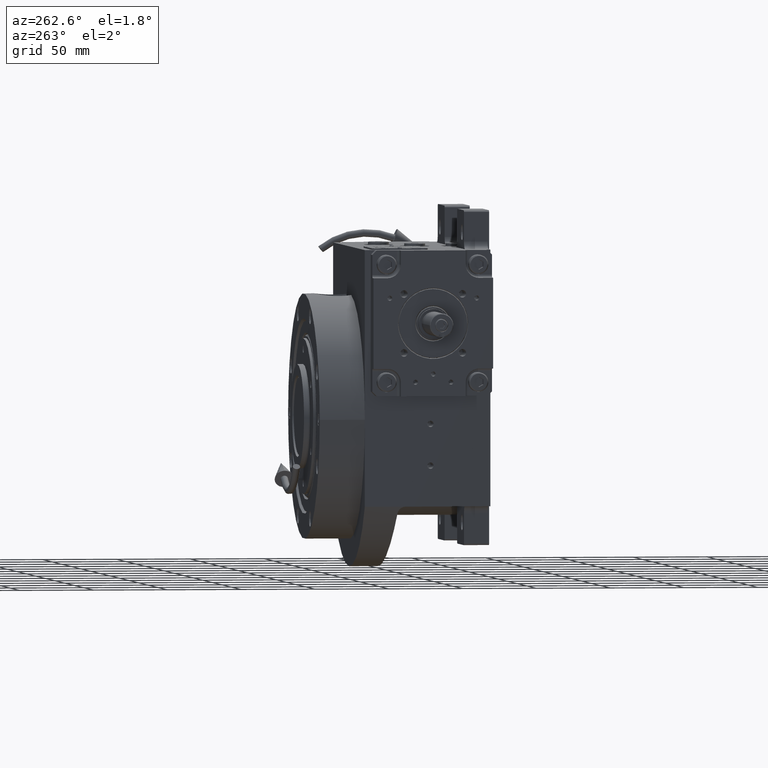
[diagram: clean part render]
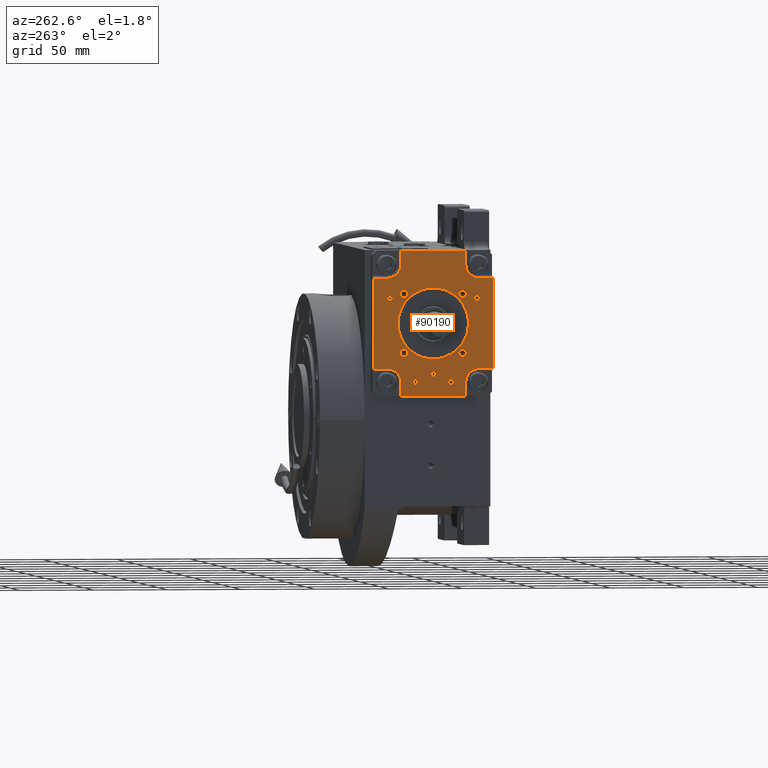
[diagram: same view with one face highlighted and labeled with its STEP entity id]
A machine part, auxiliary view. The second image highlights one B-rep face of the part: STEP entity #90190.
In plain terms, the highlighted planar face has unit normal (1, 0, -0).
Its self-contained STEP definition (entity closure, byte-faithful):
#392 = DIRECTION ( 'NONE',  ( -4.393572306434509349E-29, -1.000000000000000000, -3.774758283725543281E-15 ) ) ;
#841 = VERTEX_POINT ( 'NONE', #74594 ) ;
#988 = AXIS2_PLACEMENT_3D ( 'NONE', #53307, #392, #66175 ) ;
#1859 = FACE_BOUND ( 'NONE', #57009, .T. ) ;
#1907 = CARTESIAN_POINT ( 'NONE',  ( 20.71231213005230032, -13.99999999999995559, -11.95552765314615229 ) ) ;
#2249 = VERTEX_POINT ( 'NONE', #4853 ) ;
#2465 = AXIS2_PLACEMENT_3D ( 'NONE', #4026, #63840, #94487 ) ;
#2826 = FACE_BOUND ( 'NONE', #91025, .T. ) ;
#2887 = EDGE_CURVE ( 'NONE', #79216, #70239, #89457, .T. ) ;
#3241 = CIRCLE ( 'NONE', #53792, 2.499999999999998668 ) ;
#3307 = FACE_BOUND ( 'NONE', #9113, .T. ) ;
#3962 = VERTEX_POINT ( 'NONE', #24823 ) ;
#3983 = CARTESIAN_POINT ( 'NONE',  ( -31.09486372867137050, -13.99999999999999822, -17.00000000000094502 ) ) ;
#4026 = CARTESIAN_POINT ( 'NONE',  ( -29.44486372867137192, -13.99999999999999822, -17.00000000000093081 ) ) ;
#4078 = ORIENTED_EDGE ( 'NONE', *, *, #96115, .T. ) ;
#4853 = CARTESIAN_POINT ( 'NONE',  ( -17.29898987322287596, -13.99999999999999822, 19.79898987322282267 ) ) ;
#5047 = DIRECTION ( 'NONE',  ( 1.000000000000000000, 0.000000000000000000, 2.775557561562892929E-14 ) ) ;
#5303 = VERTEX_POINT ( 'NONE', #77811 ) ;
#5332 = VERTEX_POINT ( 'NONE', #78790 ) ;
#5456 = CARTESIAN_POINT ( 'NONE',  ( -23.54577778822957157, -14.00000000000002132, 3.887974903385350345 ) ) ;
#5496 = EDGE_CURVE ( 'NONE', #63265, #22929, #78075, .T. ) ;
#5520 = EDGE_CURVE ( 'NONE', #39835, #41111, #95065, .T. ) ;
#5942 = CARTESIAN_POINT ( 'NONE',  ( -30.99999999999905498, -13.99999999999999822, 30.49999999999906208 ) ) ;
#5947 = CARTESIAN_POINT ( 'NONE',  ( 11.95575968379388243, -14.00000000000007994, 20.71225054030661639 ) ) ;
#6144 = DIRECTION ( 'NONE',  ( -1.000000000000000000, -4.393228358949262067E-29, -2.831068712794148863E-14 ) ) ;
#6911 = CARTESIAN_POINT ( 'NONE',  ( -11.95544121681367677, -14.00000000000007994, 20.71254616477397903 ) ) ;
#7105 = VERTEX_POINT ( 'NONE', #28726 ) ;
#7666 = CIRCLE ( 'NONE', #43967, 9.000000000000001776 ) ;
#7835 = CARTESIAN_POINT ( 'NONE',  ( -2.721109384656056105E-10, -13.99999927803739830, -23.86397666347577484 ) ) ;
#8626 = DIRECTION ( 'NONE',  ( -4.393572306434509349E-29, -1.000000000000000000, -3.774758283725543281E-15 ) ) ;
#8737 = ORIENTED_EDGE ( 'NONE', *, *, #34804, .T. ) ;
#9113 = EDGE_LOOP ( 'NONE', ( #48906, #48608 ) ) ;
#9171 = EDGE_CURVE ( 'NONE', #41098, #3962, #65556, .T. ) ;
#9319 = EDGE_LOOP ( 'NONE', ( #69355, #84510 ) ) ;
#9672 = CARTESIAN_POINT ( 'NONE',  ( 9.625633623500103167E-13, -13.99999999999999822, 34.00000000000000000 ) ) ;
#9746 = FACE_OUTER_BOUND ( 'NONE', #22425, .T. ) ;
#9796 = CARTESIAN_POINT ( 'NONE',  ( 23.09942915084176818, -13.99999999999997868, -6.192947907790525619 ) ) ;
#10300 = VECTOR ( 'NONE', #56283, 1000.000000000000000 ) ;
#10357 = CIRCLE ( 'NONE', #2465, 1.649999999999998579 ) ;
#10360 = CARTESIAN_POINT ( 'NONE',  ( -40.50000000000071054, -14.00000000000001243, -30.50000000000094147 ) ) ;
#11543 = CARTESIAN_POINT ( 'NONE',  ( -27.79486372867136978, -13.99999999999999822, -17.00000000000093081 ) ) ;
#12355 = CARTESIAN_POINT ( 'NONE',  ( -31.00000000000106226, -14.00000000000001243, -39.50000000000096634 ) ) ;
#12407 = CARTESIAN_POINT ( 'NONE',  ( 40.49999999999929656, -14.00000000000001243, -30.49999999999905498 ) ) ;
#12429 = CARTESIAN_POINT ( 'NONE',  ( 21.99999999999869971, -14.00000000000047073, -48.99999999999906919 ) ) ;
#12530 = EDGE_LOOP ( 'NONE', ( #52264, #80945 ) ) ;
#12584 = CARTESIAN_POINT ( 'NONE',  ( 40.49999999999929656, -14.00000000000001243, -30.49999999999905498 ) ) ;
#12871 = CARTESIAN_POINT ( 'NONE',  ( -1.566779169208735389, -14.00000000000008882, 23.86393717191058528 ) ) ;
#13258 = EDGE_CURVE ( 'NONE', #2249, #38309, #92267, .T. ) ;
#13280 = VERTEX_POINT ( 'NONE', #93159 ) ;
#13475 = CARTESIAN_POINT ( 'NONE',  ( 22.29898987322382098, -13.99999999999999822, 19.79898987322382098 ) ) ;
#13842 = CARTESIAN_POINT ( 'NONE',  ( -10.57953588485652929, -14.00000000000007816, 21.44790465845246885 ) ) ;
#14327 = CARTESIAN_POINT ( 'NONE',  ( 1.566768470596048068, -14.00000000000009237, 23.86400311483101788 ) ) ;
#14585 = DIRECTION ( 'NONE',  ( -1.000000000000000000, 0.000000000000000000, -2.852656382717415620E-14 ) ) ;
#14805 = CARTESIAN_POINT ( 'NONE',  ( 22.34697646102477364, -14.00000000000003197, 8.409467918700963551 ) ) ;
#15411 = EDGE_CURVE ( 'NONE', #37375, #82073, #21308, .T. ) ;
#15464 = DIRECTION ( 'NONE',  ( -4.393572306434509349E-29, -1.000000000000000000, -3.774758283725543281E-15 ) ) ;
#15556 = EDGE_CURVE ( 'NONE', #87491, #5332, #31171, .T. ) ;
#15583 = DIRECTION ( 'NONE',  ( 1.000000000000000000, 0.000000000000000000, 2.852656382717415620E-14 ) ) ;
#15602 = VECTOR ( 'NONE', #58819, 1000.000000000000000 ) ;
#15750 = CARTESIAN_POINT ( 'NONE',  ( 1.566774008614369773, -13.99999999999990763, -23.86393752002926050 ) ) ;
#16372 = VECTOR ( 'NONE', #70120, 1000.000000000000000 ) ;
#16381 = CARTESIAN_POINT ( 'NONE',  ( -21.44833860699378647, -13.99999999999996092, -10.57860939760698749 ) ) ;
#16537 = VECTOR ( 'NONE', #41140, 1000.000000000000000 ) ;
#16566 = DIRECTION ( 'NONE',  ( 4.393572306434509349E-29, 1.000000000000000000, 3.774758283725543281E-15 ) ) ;
#16857 = EDGE_CURVE ( 'NONE', #74498, #78843, #25712, .T. ) ;
#17137 = VERTEX_POINT ( 'NONE', #78955 ) ;
#17840 = EDGE_CURVE ( 'NONE', #70239, #79216, #60332, .T. ) ;
#18201 = AXIS2_PLACEMENT_3D ( 'NONE', #80084, #19793, #48512 ) ;
#18789 = ORIENTED_EDGE ( 'NONE', *, *, #59069, .F. ) ;
#19714 = DIRECTION ( 'NONE',  ( -2.775557561562890720E-14, -3.854941057726237111E-15, -1.000000000000000000 ) ) ;
#19793 = DIRECTION ( 'NONE',  ( -4.393572306434509349E-29, -1.000000000000000000, -3.774758283725543281E-15 ) ) ;
#20300 = CARTESIAN_POINT ( 'NONE',  ( 23.24092213513678118, -14.00000000000002132, 5.420264589931520050 ) ) ;
#20778 = CARTESIAN_POINT ( 'NONE',  ( 23.70962956883355588, -14.00000000000001243, 3.125609056103567429 ) ) ;
#20835 = ORIENTED_EDGE ( 'NONE', *, *, #5496, .T. ) ;
#20868 = CARTESIAN_POINT ( 'NONE',  ( -15.76640134121093695, -13.99999999999992895, -17.98226844684482728 ) ) ;
#20873 = CARTESIAN_POINT ( 'NONE',  ( -22.00000000000105871, -14.00000000000001243, -39.50000000000092371 ) ) ;
#21308 = LINE ( 'NONE', #12429, #88677 ) ;
#21508 = VERTEX_POINT ( 'NONE', #11543 ) ;
#21552 = DIRECTION ( 'NONE',  ( -4.393572306434509349E-29, -1.000000000000000000, -3.774758283725543281E-15 ) ) ;
#21794 = DIRECTION ( 'NONE',  ( -1.000000000000000000, 0.000000000000000000, -2.636779683484748046E-14 ) ) ;
#21809 = LINE ( 'NONE', #56247, #48507 ) ;
#21884 = EDGE_CURVE ( 'NONE', #44111, #82699, #26288, .T. ) ;
#22024 = ORIENTED_EDGE ( 'NONE', *, *, #77211, .F. ) ;
#22240 = CARTESIAN_POINT ( 'NONE',  ( -21.44818571229936666, -14.00000000000004086, 10.57917287093051684 ) ) ;
#22425 = EDGE_LOOP ( 'NONE', ( #87661, #22486, #38173, #70606, #45338, #20835, #45787, #80588, #22024, #86671, #86433, #70315, #93664, #44987, #4078, #41408 ) ) ;
#22486 = ORIENTED_EDGE ( 'NONE', *, *, #44044, .T. ) ;
#22534 = DIRECTION ( 'NONE',  ( -4.393572306434509349E-29, -1.000000000000000000, -3.774758283725543281E-15 ) ) ;
#22929 = VERTEX_POINT ( 'NONE', #66795 ) ;
#23171 = CARTESIAN_POINT ( 'NONE',  ( 12.00000000000112088, -13.99999999999998401, 39.50000000000046185 ) ) ;
#23507 = CARTESIAN_POINT ( 'NONE',  ( -30.99999999999893774, -13.99999999999998401, 39.49999999999905498 ) ) ;
#23638 = DIRECTION ( 'NONE',  ( -4.393572306434509349E-29, -1.000000000000000000, -3.774758283725543281E-15 ) ) ;
#23804 = CARTESIAN_POINT ( 'NONE',  ( -23.86397420030304772, -13.99999855607482502, -1.113405617703122630E-07 ) ) ;
#23940 = AXIS2_PLACEMENT_3D ( 'NONE', #59718, #68098, #66156 ) ;
#24154 = CARTESIAN_POINT ( 'NONE',  ( 23.54577769822290634, -13.99999999999998046, -3.887975449872154599 ) ) ;
#24266 = CARTESIAN_POINT ( 'NONE',  ( 10.35000000000112053, -13.99999999999998401, 39.50000000000046185 ) ) ;
#24614 = CARTESIAN_POINT ( 'NONE',  ( -29.44486372867137192, -13.99999999999999822, -17.00000000000093081 ) ) ;
#24642 = CARTESIAN_POINT ( 'NONE',  ( 14.56088552662168389, -13.99999999999992895, -18.97166031808825792 ) ) ;
#24823 = CARTESIAN_POINT ( 'NONE',  ( 17.29898987322382098, -13.99999999999999822, 19.79898987322381743 ) ) ;
#25075 = FACE_BOUND ( 'NONE', #9319, .T. ) ;
#25640 = AXIS2_PLACEMENT_3D ( 'NONE', #9672, #45821, #37921 ) ;
#25712 = LINE ( 'NONE', #63773, #77868 ) ;
#26074 = DIRECTION ( 'NONE',  ( -2.831068712794148547E-14, -3.774758283725543281E-15, -1.000000000000000000 ) ) ;
#26288 = LINE ( 'NONE', #12407, #16537 ) ;
#26385 = EDGE_CURVE ( 'NONE', #63265, #45470, #59795, .T. ) ;
#26950 = LINE ( 'NONE', #71453, #77760 ) ;
#27219 = EDGE_CURVE ( 'NONE', #44825, #70663, #83015, .T. ) ;
#27320 = CARTESIAN_POINT ( 'NONE',  ( -2.721109384656056105E-10, -13.99999927803739830, -23.86397666347577484 ) ) ;
#27591 = AXIS2_PLACEMENT_3D ( 'NONE', #46854, #32006, #62159 ) ;
#27707 = CARTESIAN_POINT ( 'NONE',  ( 6.192328095637854801, -14.00000000000008349, 23.09972492920076093 ) ) ;
#27857 = AXIS2_PLACEMENT_3D ( 'NONE', #84741, #8626, #69441 ) ;
#28186 = CARTESIAN_POINT ( 'NONE',  ( 21.44833792708046616, -14.00000000000004086, 10.57861081113255253 ) ) ;
#28726 = CARTESIAN_POINT ( 'NONE',  ( -21.99999999999893774, -13.99999999999998401, 39.49999999999952394 ) ) ;
#28802 = CIRCLE ( 'NONE', #25640, 1.649999999999999911 ) ;
#29664 = CARTESIAN_POINT ( 'NONE',  ( 14.56054772235363082, -14.00000000000006928, 18.97195909268343073 ) ) ;
#29813 = CARTESIAN_POINT ( 'NONE',  ( 31.00000000000106226, -13.99999999999998401, 39.50000000000093792 ) ) ;
#29819 = ORIENTED_EDGE ( 'NONE', *, *, #90330, .F. ) ;
#29918 = CARTESIAN_POINT ( 'NONE',  ( 30.99999999999893774, -14.00000000000001243, -39.49999999999906208 ) ) ;
#30218 = DIRECTION ( 'NONE',  ( -1.000000000000000000, 0.000000000000000000, -2.943773171354580837E-14 ) ) ;
#30542 = AXIS2_PLACEMENT_3D ( 'NONE', #23171, #37521, #91380 ) ;
#31171 = LINE ( 'NONE', #82571, #58715 ) ;
#32006 = DIRECTION ( 'NONE',  ( -1.507982843436518664E-28, 1.000000000000000000, 3.774758283725543281E-15 ) ) ;
#32076 = CARTESIAN_POINT ( 'NONE',  ( -21.99999999999869971, -13.99999999999952749, 48.99999999999953104 ) ) ;
#32296 = CIRCLE ( 'NONE', #81246, 1.649999999999998579 ) ;
#32496 = PLANE ( 'NONE',  #27591 ) ;
#33115 = DIRECTION ( 'NONE',  ( 1.000000000000000000, 4.393228358949262067E-29, 2.831068712794148863E-14 ) ) ;
#33543 = AXIS2_PLACEMENT_3D ( 'NONE', #63242, #15464, #93388 ) ;
#33722 = VECTOR ( 'NONE', #68608, 1000.000000000000000 ) ;
#34145 = AXIS2_PLACEMENT_3D ( 'NONE', #59334, #72210, #96391 ) ;
#34419 = EDGE_LOOP ( 'NONE', ( #95438, #42297 ) ) ;
#34576 = VERTEX_POINT ( 'NONE', #73106 ) ;
#34647 = EDGE_CURVE ( 'NONE', #70663, #44825, #49540, .T. ) ;
#34666 = VERTEX_POINT ( 'NONE', #83444 ) ;
#34760 = CARTESIAN_POINT ( 'NONE',  ( -1.566773563360392973, -13.99999999999990763, -23.86400276692703670 ) ) ;
#34804 = EDGE_CURVE ( 'NONE', #34666, #17137, #38620, .T. ) ;
#35149 = CARTESIAN_POINT ( 'NONE',  ( 17.98245215247009199, -14.00000000000005329, 15.76637152696359578 ) ) ;
#35197 = DIRECTION ( 'NONE',  ( 2.831068712794148547E-14, 3.774758283725543281E-15, 1.000000000000000000 ) ) ;
#35349 = CARTESIAN_POINT ( 'NONE',  ( 21.99999999999869971, -14.00000000000047073, -48.99999999999906919 ) ) ;
#35634 = CARTESIAN_POINT ( 'NONE',  ( -23.47920126455800371, -14.00000000000001421, 4.271604035881808592 ) ) ;
#36124 = CARTESIAN_POINT ( 'NONE',  ( 23.32664490037724292, -14.00000000000002132, 5.038317025994189180 ) ) ;
#36145 = VERTEX_POINT ( 'NONE', #51806 ) ;
#36231 = EDGE_CURVE ( 'NONE', #45470, #80367, #60206, .T. ) ;
#36401 = DIRECTION ( 'NONE',  ( -4.393572306434509349E-29, -1.000000000000000000, -3.774758283725543281E-15 ) ) ;
#36598 = CARTESIAN_POINT ( 'NONE',  ( -23.86322586908651289, -14.00000000000000355, 0.7869472472480262271 ) ) ;
#36899 = DIRECTION ( 'NONE',  ( 1.000000000000000000, 0.000000000000000000, 2.775557561562892929E-14 ) ) ;
#37020 = AXIS2_PLACEMENT_3D ( 'NONE', #58448, #50537, #5047 ) ;
#37099 = CARTESIAN_POINT ( 'NONE',  ( 10.57957080955147511, -14.00000000000007994, 21.44796303468496035 ) ) ;
#37195 = CARTESIAN_POINT ( 'NONE',  ( -23.32664505306335201, -13.99999999999997691, -5.038316317723427140 ) ) ;
#37375 = VERTEX_POINT ( 'NONE', #66180 ) ;
#37521 = DIRECTION ( 'NONE',  ( -4.393572306434509349E-29, -1.000000000000000000, -3.774758283725543281E-15 ) ) ;
#37726 = EDGE_CURVE ( 'NONE', #5303, #841, #32296, .T. ) ;
#37783 = CARTESIAN_POINT ( 'NONE',  ( 21.99999999999893774, -14.00000000000001243, -39.49999999999906208 ) ) ;
#37921 = DIRECTION ( 'NONE',  ( 1.000000000000000000, 0.000000000000000000, 2.943773171354582099E-14 ) ) ;
#38034 = CARTESIAN_POINT ( 'NONE',  ( 3.119326620315172605, -13.99999999999990941, -23.71108290340073665 ) ) ;
#38147 = DIRECTION ( 'NONE',  ( -1.000000000000000000, 0.000000000000000000, -2.775557561562892929E-14 ) ) ;
#38159 = DIRECTION ( 'NONE',  ( -4.393572306434509349E-29, -1.000000000000000000, -3.774758283725543281E-15 ) ) ;
#38173 = ORIENTED_EDGE ( 'NONE', *, *, #68914, .T. ) ;
#38309 = VERTEX_POINT ( 'NONE', #94474 ) ;
#38336 = DIRECTION ( 'NONE',  ( 4.393572306434509349E-29, 1.000000000000000000, 3.774758283725543281E-15 ) ) ;
#38589 = VERTEX_POINT ( 'NONE', #3983 ) ;
#38620 = B_SPLINE_CURVE_WITH_KNOTS ( 'NONE', 3,
 ( #65294, #36598, #88015, #50950, #5456, #35634, #58372, #97395, #81073, #22240, #95924, #95430, #51905, #43535, #59348, #6911, #13842, #65783, #82042, #74617, #12871, #14327, #59828, #27707, #43053, #37099, #5947, #29664, #52398, #35149, #89472, #96900, #28186, #14805, #75118, #88496, #20300, #36124, #50468, #20778, #66266, #96407 ),
 .UNSPECIFIED., .F., .F.,
 ( 4, 1, 1, 2, 2, 2, 2, 2, 2, 2, 2, 2, 2, 2, 2, 2, 2, 2, 1, 1, 2, 2, 4 ),
 ( 0.000000000000000000, 0.03125000000000020123, 0.04687500000000029143, 0.05468750000000034694, 0.06250000000000038858, 0.1250000000000004718, 0.1875000000000005551, 0.2500000000000006661, 0.3125000000000006661, 0.3750000000000006661, 0.4375000000000007216, 0.5000000000000006661, 0.5625000000000007772, 0.6250000000000007772, 0.6875000000000007772, 0.7500000000000006661, 0.8125000000000005551, 0.8750000000000004441, 0.9062500000000004441, 0.9218750000000003331, 0.9296875000000003331, 0.9375000000000002220, 1.000000000000000000 ),
 .UNSPECIFIED. ) ;
#38705 = VERTEX_POINT ( 'NONE', #87502 ) ;
#38995 = ORIENTED_EDGE ( 'NONE', *, *, #86679, .F. ) ;
#39032 = CARTESIAN_POINT ( 'NONE',  ( 18.97211941539627844, -13.99999999999994138, -14.56041862828626066 ) ) ;
#39835 = VERTEX_POINT ( 'NONE', #95055 ) ;
#41098 = VERTEX_POINT ( 'NONE', #13475 ) ;
#41111 = VERTEX_POINT ( 'NONE', #54962 ) ;
#41140 = DIRECTION ( 'NONE',  ( -1.000000000000000000, -4.393228358949262067E-29, -2.831068712794148863E-14 ) ) ;
#41408 = ORIENTED_EDGE ( 'NONE', *, *, #15556, .F. ) ;
#41795 = EDGE_CURVE ( 'NONE', #82073, #82699, #66653, .T. ) ;
#42237 = CARTESIAN_POINT ( 'NONE',  ( 22.00000000000129674, -13.99999999999952749, 49.00000000000047606 ) ) ;
#42297 = ORIENTED_EDGE ( 'NONE', *, *, #34647, .F. ) ;
#42366 = CARTESIAN_POINT ( 'NONE',  ( -19.79898987322287596, -13.99999999999999822, 19.79898987322282267 ) ) ;
#42657 = CARTESIAN_POINT ( 'NONE',  ( -14.56055017842635557, -13.99999999999993072, -18.97195719011450876 ) ) ;
#42895 = ORIENTED_EDGE ( 'NONE', *, *, #9171, .F. ) ;
#43024 = AXIS2_PLACEMENT_3D ( 'NONE', #29918, #38336, #14585 ) ;
#43031 = CARTESIAN_POINT ( 'NONE',  ( -10.34999999999887876, -13.99999999999998401, 39.49999999999953104 ) ) ;
#43053 = CARTESIAN_POINT ( 'NONE',  ( 7.685169508964895257, -14.00000000000008527, 22.64680274495815482 ) ) ;
#43315 = DIRECTION ( 'NONE',  ( -1.000000000000000000, 0.000000000000000000, -2.636779683484748046E-14 ) ) ;
#43535 = CARTESIAN_POINT ( 'NONE',  ( -15.76650740898569225, -14.00000000000006750, 17.98226460072634225 ) ) ;
#43883 = EDGE_CURVE ( 'NONE', #41111, #39835, #28802, .T. ) ;
#43967 = AXIS2_PLACEMENT_3D ( 'NONE', #29813, #90112, #19714 ) ;
#44044 = EDGE_CURVE ( 'NONE', #36145, #7105, #26950, .T. ) ;
#44111 = VERTEX_POINT ( 'NONE', #12584 ) ;
#44608 = CARTESIAN_POINT ( 'NONE',  ( -22.74139576683487007, -13.99999999999997158, -7.307389396848209984 ) ) ;
#44665 = EDGE_CURVE ( 'NONE', #13280, #34666, #76834, .T. ) ;
#44825 = VERTEX_POINT ( 'NONE', #86548 ) ;
#44987 = ORIENTED_EDGE ( 'NONE', *, *, #71012, .T. ) ;
#45338 = ORIENTED_EDGE ( 'NONE', *, *, #26385, .F. ) ;
#45450 = CARTESIAN_POINT ( 'NONE',  ( 23.44379405512639991, -13.99999999999998224, -4.461832952019680221 ) ) ;
#45470 = VERTEX_POINT ( 'NONE', #79236 ) ;
#45787 = ORIENTED_EDGE ( 'NONE', *, *, #83930, .T. ) ;
#45821 = DIRECTION ( 'NONE',  ( -4.393572306434509349E-29, -1.000000000000000000, -3.774758283725543281E-15 ) ) ;
#46078 = CARTESIAN_POINT ( 'NONE',  ( -23.70962961231633770, -13.99999999999998401, -3.125608614640585259 ) ) ;
#46854 = CARTESIAN_POINT ( 'NONE',  ( 1.047705889746656304E-28, -13.99999999999999822, 0.000000000000000000 ) ) ;
#47246 = ORIENTED_EDGE ( 'NONE', *, *, #76833, .T. ) ;
#47387 = CARTESIAN_POINT ( 'NONE',  ( 40.50000000000094502, -13.99999999999999822, 30.50000000000094147 ) ) ;
#47723 = VECTOR ( 'NONE', #33115, 1000.000000000000000 ) ;
#47913 = CARTESIAN_POINT ( 'NONE',  ( 40.50000000000094502, -13.99999999999999822, 30.50000000000094147 ) ) ;
#48507 = VECTOR ( 'NONE', #26074, 1000.000000000000000 ) ;
#48512 = DIRECTION ( 'NONE',  ( 1.000000000000000000, 0.000000000000000000, 2.636779683484748046E-14 ) ) ;
#48608 = ORIENTED_EDGE ( 'NONE', *, *, #90429, .F. ) ;
#48889 = ORIENTED_EDGE ( 'NONE', *, *, #88592, .F. ) ;
#48906 = ORIENTED_EDGE ( 'NONE', *, *, #13258, .F. ) ;
#48960 = CARTESIAN_POINT ( 'NONE',  ( 30.99999999999905498, -14.00000000000001243, -30.49999999999905498 ) ) ;
#49466 = DIRECTION ( 'NONE',  ( 4.393572306434509349E-29, 1.000000000000000000, 3.774758283725543281E-15 ) ) ;
#49540 = CIRCLE ( 'NONE', #30542, 1.650000000000000355 ) ;
#50174 = VECTOR ( 'NONE', #6144, 1000.000000000000000 ) ;
#50468 = CARTESIAN_POINT ( 'NONE',  ( 23.36748957619225564, -14.00000000000001954, 4.845252721683312558 ) ) ;
#50537 = DIRECTION ( 'NONE',  ( -4.393572306434509349E-29, -1.000000000000000000, -3.774758283725543281E-15 ) ) ;
#50950 = CARTESIAN_POINT ( 'NONE',  ( -23.63854925147816033, -14.00000000000000888, 3.311476437734099498 ) ) ;
#51225 = EDGE_CURVE ( 'NONE', #21508, #38589, #75432, .T. ) ;
#51806 = CARTESIAN_POINT ( 'NONE',  ( -21.99999999999869971, -13.99999999999952749, 48.99999999999953104 ) ) ;
#51905 = CARTESIAN_POINT ( 'NONE',  ( -17.98235932460677233, -14.00000000000005862, 15.76636488206861486 ) ) ;
#52264 = ORIENTED_EDGE ( 'NONE', *, *, #37726, .F. ) ;
#52398 = CARTESIAN_POINT ( 'NONE',  ( 15.76639915680304682, -14.00000000000006750, 17.98227038497826769 ) ) ;
#52768 = AXIS2_PLACEMENT_3D ( 'NONE', #83794, #22534, #36899 ) ;
#52870 = CIRCLE ( 'NONE', #93927, 2.499999999999998668 ) ;
#52980 = CARTESIAN_POINT ( 'NONE',  ( -22.34697688814391370, -13.99999999999996980, -8.409466773888212288 ) ) ;
#53243 = EDGE_CURVE ( 'NONE', #34576, #72482, #96981, .T. ) ;
#53307 = CARTESIAN_POINT ( 'NONE',  ( 19.79898987322275872, -13.99999999999999822, -19.79898987322282977 ) ) ;
#53482 = CARTESIAN_POINT ( 'NONE',  ( -23.10547566701053768, -13.99999999999997335, -5.990996842902134745 ) ) ;
#53792 = AXIS2_PLACEMENT_3D ( 'NONE', #74659, #53917, #21794 ) ;
#53803 = DIRECTION ( 'NONE',  ( 1.000000000000000000, 0.000000000000000000, 3.784851220313037103E-14 ) ) ;
#53833 = CARTESIAN_POINT ( 'NONE',  ( 6.191961161476491782, -13.99999999999991473, -23.09972976944129996 ) ) ;
#53917 = DIRECTION ( 'NONE',  ( -4.393572306434509349E-29, -1.000000000000000000, -3.774758283725543281E-15 ) ) ;
#54014 = EDGE_LOOP ( 'NONE', ( #48889, #29819 ) ) ;
#54277 = FACE_BOUND ( 'NONE', #79738, .T. ) ;
#54329 = CARTESIAN_POINT ( 'NONE',  ( 15.76650524893556238, -13.99999999999992717, -17.98226651476915805 ) ) ;
#54962 = CARTESIAN_POINT ( 'NONE',  ( 1.650000000000958478, -13.99999999999999822, 34.00000000000000000 ) ) ;
#55291 = CARTESIAN_POINT ( 'NONE',  ( 23.86322586898059939, -13.99999999999999822, -0.7869473592178296562 ) ) ;
#55618 = AXIS2_PLACEMENT_3D ( 'NONE', #23507, #16566, #15583 ) ;
#55984 = AXIS2_PLACEMENT_3D ( 'NONE', #58647, #72489, #43315 ) ;
#56247 = CARTESIAN_POINT ( 'NONE',  ( 40.50000000000094502, -13.99999999999999822, 30.50000000000094147 ) ) ;
#56283 = DIRECTION ( 'NONE',  ( 1.000000000000000000, 4.393228358949262067E-29, 2.831068712794148863E-14 ) ) ;
#57009 = EDGE_LOOP ( 'NONE', ( #88253, #18789 ) ) ;
#57117 = DIRECTION ( 'NONE',  ( -2.831068712794148547E-14, -3.774758283725543281E-15, -1.000000000000000000 ) ) ;
#57859 = DIRECTION ( 'NONE',  ( 2.775557561562890720E-14, 3.854941057726237111E-15, 1.000000000000000000 ) ) ;
#57985 = CARTESIAN_POINT ( 'NONE',  ( -18.97165082881188880, -13.99999999999994493, -14.56102186836356616 ) ) ;
#58372 = CARTESIAN_POINT ( 'NONE',  ( -23.44379417511130725, -14.00000000000001599, 4.461832321008357916 ) ) ;
#58448 = CARTESIAN_POINT ( 'NONE',  ( -19.79898987322393822, -13.99999999999999822, -19.79898987322428638 ) ) ;
#58647 = CARTESIAN_POINT ( 'NONE',  ( 19.79898987322275872, -13.99999999999999822, -19.79898987322287240 ) ) ;
#58715 = VECTOR ( 'NONE', #90497, 1000.000000000000000 ) ;
#58819 = DIRECTION ( 'NONE',  ( 2.831068712794148547E-14, 3.774758283725543281E-15, 1.000000000000000000 ) ) ;
#58929 = ORIENTED_EDGE ( 'NONE', *, *, #2887, .F. ) ;
#59069 = EDGE_CURVE ( 'NONE', #72482, #34576, #62886, .T. ) ;
#59334 = CARTESIAN_POINT ( 'NONE',  ( 12.00000000000112088, -13.99999999999998401, 39.50000000000046185 ) ) ;
#59348 = CARTESIAN_POINT ( 'NONE',  ( -14.56088801808533439, -14.00000000000007105, 18.97165839184616587 ) ) ;
#59718 = CARTESIAN_POINT ( 'NONE',  ( 29.44486372867042689, -13.99999999999999822, -16.99999999999907274 ) ) ;
#59795 = LINE ( 'NONE', #88456, #15602 ) ;
#59828 = CARTESIAN_POINT ( 'NONE',  ( 3.118947749979955830, -14.00000000000008882, 23.71108948655760784 ) ) ;
#60206 = LINE ( 'NONE', #90348, #33722 ) ;
#60332 = CIRCLE ( 'NONE', #72937, 1.650000000000000355 ) ;
#60835 = ORIENTED_EDGE ( 'NONE', *, *, #17840, .F. ) ;
#61733 = LINE ( 'NONE', #47387, #16372 ) ;
#62159 = DIRECTION ( 'NONE',  ( 1.000000000000000000, 4.393228358949262067E-29, 2.831068712794148863E-14 ) ) ;
#62211 = CARTESIAN_POINT ( 'NONE',  ( 21.44818503823665168, -13.99999999999996270, -10.57917427091263640 ) ) ;
#62649 = FACE_BOUND ( 'NONE', #12530, .T. ) ;
#62667 = EDGE_CURVE ( 'NONE', #3962, #41098, #3241, .T. ) ;
#62886 = CIRCLE ( 'NONE', #70802, 2.499999999999998668 ) ;
#63242 = CARTESIAN_POINT ( 'NONE',  ( 9.625633623500103167E-13, -13.99999999999999822, 34.00000000000000000 ) ) ;
#63265 = VERTEX_POINT ( 'NONE', #95113 ) ;
#63773 = CARTESIAN_POINT ( 'NONE',  ( -22.00000000000129674, -14.00000000000047073, -49.00000000000093081 ) ) ;
#63840 = DIRECTION ( 'NONE',  ( -4.393572306434509349E-29, -1.000000000000000000, -3.774758283725543281E-15 ) ) ;
#64108 = FACE_BOUND ( 'NONE', #68399, .T. ) ;
#65130 = ORIENTED_EDGE ( 'NONE', *, *, #62667, .F. ) ;
#65269 = CARTESIAN_POINT ( 'NONE',  ( -22.00000000000129674, -14.00000000000047073, -49.00000000000093081 ) ) ;
#65294 = CARTESIAN_POINT ( 'NONE',  ( -23.86397420030304772, -13.99999855607482502, -1.113405617703122630E-07 ) ) ;
#65556 = CIRCLE ( 'NONE', #18201, 2.499999999999998668 ) ;
#65783 = CARTESIAN_POINT ( 'NONE',  ( -7.685223904494162817, -14.00000000000008527, 22.64685083059221782 ) ) ;
#65992 = LINE ( 'NONE', #35349, #50174 ) ;
#66156 = DIRECTION ( 'NONE',  ( -1.000000000000000000, 0.000000000000000000, -2.733503659114971031E-14 ) ) ;
#66175 = DIRECTION ( 'NONE',  ( 1.000000000000000000, 0.000000000000000000, 2.636779683484748046E-14 ) ) ;
#66180 = CARTESIAN_POINT ( 'NONE',  ( 21.99999999999869971, -14.00000000000047073, -48.99999999999906919 ) ) ;
#66266 = CARTESIAN_POINT ( 'NONE',  ( 23.86245126994556287, -14.00000000000001066, 1.574215321675275447 ) ) ;
#66337 = CARTESIAN_POINT ( 'NONE',  ( -19.79898987322393822, -13.99999999999999822, -19.79898987322428638 ) ) ;
#66541 = DIRECTION ( 'NONE',  ( -1.000000000000000000, 0.000000000000000000, -2.775557561562892929E-14 ) ) ;
#66653 = CIRCLE ( 'NONE', #43024, 9.000000000000001776 ) ;
#66795 = CARTESIAN_POINT ( 'NONE',  ( -31.00000000000094502, -14.00000000000001243, -30.50000000000094147 ) ) ;
#67079 = EDGE_CURVE ( 'NONE', #841, #5303, #71362, .T. ) ;
#67113 = VERTEX_POINT ( 'NONE', #81437 ) ;
#67340 = CARTESIAN_POINT ( 'NONE',  ( -23.36748971678186138, -13.99999999999997868, -4.845252042924186320 ) ) ;
#68098 = DIRECTION ( 'NONE',  ( -4.393572306434509349E-29, -1.000000000000000000, -3.774758283725543281E-15 ) ) ;
#68161 = CARTESIAN_POINT ( 'NONE',  ( 23.80536272683590227, -13.99999999999999112, -1.958930260381883004 ) ) ;
#68399 = EDGE_LOOP ( 'NONE', ( #70240, #38995 ) ) ;
#68608 = DIRECTION ( 'NONE',  ( 1.000000000000000000, 4.393228358949262067E-29, 2.831068712794148863E-14 ) ) ;
#68809 = CARTESIAN_POINT ( 'NONE',  ( -23.24092231173644052, -13.99999999999998224, -5.420263831053940606 ) ) ;
#68914 = EDGE_CURVE ( 'NONE', #7105, #80367, #85800, .T. ) ;
#69355 = ORIENTED_EDGE ( 'NONE', *, *, #43883, .F. ) ;
#69441 = DIRECTION ( 'NONE',  ( 1.000000000000000000, 0.000000000000000000, 2.943773171354580837E-14 ) ) ;
#69640 = CARTESIAN_POINT ( 'NONE',  ( 23.47920115566111221, -13.99999999999998224, -4.271604635540419359 ) ) ;
#69858 = CARTESIAN_POINT ( 'NONE',  ( -13.64999999999887947, -13.99999999999998401, 39.49999999999953815 ) ) ;
#70120 = DIRECTION ( 'NONE',  ( -1.000000000000000000, -4.393228358949262067E-29, -2.831068712794148863E-14 ) ) ;
#70239 = VERTEX_POINT ( 'NONE', #69858 ) ;
#70240 = ORIENTED_EDGE ( 'NONE', *, *, #51225, .F. ) ;
#70315 = ORIENTED_EDGE ( 'NONE', *, *, #21884, .F. ) ;
#70606 = ORIENTED_EDGE ( 'NONE', *, *, #36231, .F. ) ;
#70663 = VERTEX_POINT ( 'NONE', #24266 ) ;
#70802 = AXIS2_PLACEMENT_3D ( 'NONE', #66337, #73733, #38147 ) ;
#71012 = EDGE_CURVE ( 'NONE', #93670, #67113, #61733, .T. ) ;
#71354 = CARTESIAN_POINT ( 'NONE',  ( 22.29898987322275872, -13.99999999999999822, -19.79898987322239989 ) ) ;
#71362 = CIRCLE ( 'NONE', #23940, 1.649999999999998579 ) ;
#71453 = CARTESIAN_POINT ( 'NONE',  ( -21.99999999999869971, -13.99999999999952749, 48.99999999999953104 ) ) ;
#72008 = ORIENTED_EDGE ( 'NONE', *, *, #44665, .T. ) ;
#72210 = DIRECTION ( 'NONE',  ( -4.393572306434509349E-29, -1.000000000000000000, -3.774758283725543281E-15 ) ) ;
#72373 = EDGE_CURVE ( 'NONE', #36145, #87491, #84458, .T. ) ;
#72482 = VERTEX_POINT ( 'NONE', #73026 ) ;
#72489 = DIRECTION ( 'NONE',  ( -4.393572306434509349E-29, -1.000000000000000000, -3.774758283725543281E-15 ) ) ;
#72786 = CARTESIAN_POINT ( 'NONE',  ( -6.192332379422525790, -13.99999999999990941, -23.09972376668354954 ) ) ;
#72937 = AXIS2_PLACEMENT_3D ( 'NONE', #84071, #38159, #30218 ) ;
#73026 = CARTESIAN_POINT ( 'NONE',  ( -22.29898987322393822, -13.99999999999999822, -19.79898987322428638 ) ) ;
#73093 = CIRCLE ( 'NONE', #90469, 9.000000000000001776 ) ;
#73106 = CARTESIAN_POINT ( 'NONE',  ( -17.29898987322393822, -13.99999999999999822, -19.79898987322335913 ) ) ;
#73733 = DIRECTION ( 'NONE',  ( -4.393572306434509349E-29, -1.000000000000000000, -3.774758283725543281E-15 ) ) ;
#74426 = DIRECTION ( 'NONE',  ( 1.000000000000000000, 0.000000000000000000, 2.733503659114971031E-14 ) ) ;
#74498 = VERTEX_POINT ( 'NONE', #65269 ) ;
#74594 = CARTESIAN_POINT ( 'NONE',  ( 27.79486372867042476, -13.99999999999999822, -16.99999999999907274 ) ) ;
#74617 = CARTESIAN_POINT ( 'NONE',  ( -3.119331459816308882, -14.00000000000009237, 23.71108225105577461 ) ) ;
#74659 = CARTESIAN_POINT ( 'NONE',  ( 19.79898987322381743, -13.99999999999999822, 19.79898987322378190 ) ) ;
#75118 = CARTESIAN_POINT ( 'NONE',  ( 22.74139545049670730, -14.00000000000002842, 7.307390402314824840 ) ) ;
#75210 = VERTEX_POINT ( 'NONE', #71354 ) ;
#75432 = CIRCLE ( 'NONE', #89622, 1.649999999999998579 ) ;
#75565 = CARTESIAN_POINT ( 'NONE',  ( 11.95543814826823770, -13.99999999999992006, -20.71254795357625866 ) ) ;
#76047 = CARTESIAN_POINT ( 'NONE',  ( 17.98235770176432879, -13.99999999999993783, -15.76636675099964080 ) ) ;
#76535 = CARTESIAN_POINT ( 'NONE',  ( 7.685219915720692185, -13.99999999999991296, -22.64685220041129199 ) ) ;
#76833 = EDGE_CURVE ( 'NONE', #17137, #13280, #82102, .T. ) ;
#76834 = B_SPLINE_CURVE_WITH_KNOTS ( 'NONE', 3,
 ( #27320, #34760, #88584, #72786, #87628, #96015, #80191, #42657, #20868, #95525, #57985, #88109, #16381, #52980, #44608, #53482, #68809, #37195, #67340, #46078, #97496, #23804 ),
 .UNSPECIFIED., .F., .F.,
 ( 4, 2, 2, 2, 2, 2, 2, 1, 1, 2, 2, 4 ),
 ( 0.5000000711331469283, 0.5625000622415036178, 0.6250000533498601962, 0.6875000444582168857, 0.7500000355665734642, 0.8125000266749300426, 0.8750000177832867321, 0.9062500133374651323, 0.9218750111145542769, 0.9296875100030987937, 0.9375000088916434215, 1.000000000000000000 ),
 .UNSPECIFIED. ) ;
#76982 = FACE_BOUND ( 'NONE', #89180, .T. ) ;
#77031 = CARTESIAN_POINT ( 'NONE',  ( 23.86397420030310101, -13.99999855607482502, 1.113405617703122630E-07 ) ) ;
#77211 = EDGE_CURVE ( 'NONE', #37375, #74498, #65992, .T. ) ;
#77508 = CARTESIAN_POINT ( 'NONE',  ( 23.63854918778859115, -13.99999999999998401, -3.311476904161794632 ) ) ;
#77760 = VECTOR ( 'NONE', #57117, 1000.000000000000000 ) ;
#77811 = CARTESIAN_POINT ( 'NONE',  ( 31.09486372867042547, -13.99999999999999822, -16.99999999999907274 ) ) ;
#77868 = VECTOR ( 'NONE', #78591, 1000.000000000000000 ) ;
#78075 = LINE ( 'NONE', #10360, #47723 ) ;
#78591 = DIRECTION ( 'NONE',  ( 2.831068712794148547E-14, 3.774758283725543281E-15, 1.000000000000000000 ) ) ;
#78790 = CARTESIAN_POINT ( 'NONE',  ( 22.00000000000105871, -13.99999999999998401, 39.50000000000046896 ) ) ;
#78843 = VERTEX_POINT ( 'NONE', #20873 ) ;
#78913 = FACE_BOUND ( 'NONE', #54014, .T. ) ;
#78955 = CARTESIAN_POINT ( 'NONE',  ( 23.86397420030310101, -13.99999855607482502, 1.113405617703122630E-07 ) ) ;
#79216 = VERTEX_POINT ( 'NONE', #43031 ) ;
#79236 = CARTESIAN_POINT ( 'NONE',  ( -40.49999999999905498, -13.99999999999999822, 30.49999999999858957 ) ) ;
#79738 = EDGE_LOOP ( 'NONE', ( #47246, #72008, #8737 ) ) ;
#80084 = CARTESIAN_POINT ( 'NONE',  ( 19.79898987322381743, -13.99999999999999822, 19.79898987322382098 ) ) ;
#80191 = CARTESIAN_POINT ( 'NONE',  ( -11.95576278632398903, -13.99999999999991829, -20.71224872910296000 ) ) ;
#80367 = VERTEX_POINT ( 'NONE', #5942 ) ;
#80588 = ORIENTED_EDGE ( 'NONE', *, *, #16857, .F. ) ;
#80945 = ORIENTED_EDGE ( 'NONE', *, *, #67079, .F. ) ;
#81073 = CARTESIAN_POINT ( 'NONE',  ( -22.64668203140375269, -14.00000000000003020, 7.685839165587933230 ) ) ;
#81246 = AXIS2_PLACEMENT_3D ( 'NONE', #89261, #21552, #74426 ) ;
#81437 = CARTESIAN_POINT ( 'NONE',  ( 31.00000000000094502, -13.99999999999999822, 30.50000000000094147 ) ) ;
#82042 = CARTESIAN_POINT ( 'NONE',  ( -6.191965501752854983, -14.00000000000008527, 23.09972859531175615 ) ) ;
#82073 = VERTEX_POINT ( 'NONE', #37783 ) ;
#82102 = B_SPLINE_CURVE_WITH_KNOTS ( 'NONE', 3,
 ( #77031, #55291, #68161, #77508, #24154, #69640, #45450, #9796, #83465, #62211, #1907, #39032, #76047, #54329, #24642, #75565, #84929, #76535, #53833, #38034, #15750, #7835 ),
 .UNSPECIFIED., .F., .F.,
 ( 4, 1, 1, 2, 2, 2, 2, 2, 2, 2, 2, 4 ),
 ( 0.000000000000000000, 0.03125000444582186343, 0.04687500666873279515, 0.05468750778018826447, 0.06250000889164369910, 0.1250000177832869819, 0.1875000266749302924, 0.2500000355665735752, 0.3125000444582168857, 0.3750000533498602517, 0.4375000622415035623, 0.5000000711331469283 ),
 .UNSPECIFIED. ) ;
#82571 = CARTESIAN_POINT ( 'NONE',  ( 22.00000000000129674, -13.99999999999952749, 49.00000000000047606 ) ) ;
#82699 = VERTEX_POINT ( 'NONE', #48960 ) ;
#83015 = CIRCLE ( 'NONE', #34145, 1.650000000000000355 ) ;
#83444 = CARTESIAN_POINT ( 'NONE',  ( -23.86397420030304772, -13.99999855607482502, -1.113405617703122630E-07 ) ) ;
#83465 = CARTESIAN_POINT ( 'NONE',  ( 22.64668168243262514, -13.99999999999997158, -7.685840235348960547 ) ) ;
#83794 = CARTESIAN_POINT ( 'NONE',  ( -19.79898987322287596, -13.99999999999999822, 19.79898987322282267 ) ) ;
#83930 = EDGE_CURVE ( 'NONE', #22929, #78843, #73093, .T. ) ;
#84071 = CARTESIAN_POINT ( 'NONE',  ( -11.99999999999887912, -13.99999999999998401, 39.49999999999976552 ) ) ;
#84458 = LINE ( 'NONE', #32076, #10300 ) ;
#84510 = ORIENTED_EDGE ( 'NONE', *, *, #5520, .F. ) ;
#84741 = CARTESIAN_POINT ( 'NONE',  ( -11.99999999999887912, -13.99999999999998401, 39.49999999999976552 ) ) ;
#84929 = CARTESIAN_POINT ( 'NONE',  ( 10.57953246189510566, -13.99999999999992006, -21.44790635888606900 ) ) ;
#85800 = CIRCLE ( 'NONE', #55618, 9.000000000000001776 ) ;
#85850 = FACE_BOUND ( 'NONE', #34419, .T. ) ;
#86433 = ORIENTED_EDGE ( 'NONE', *, *, #41795, .T. ) ;
#86548 = CARTESIAN_POINT ( 'NONE',  ( 13.65000000000112124, -13.99999999999998401, 39.50000000000046896 ) ) ;
#86671 = ORIENTED_EDGE ( 'NONE', *, *, #15411, .T. ) ;
#86679 = EDGE_CURVE ( 'NONE', #38589, #21508, #10357, .T. ) ;
#87491 = VERTEX_POINT ( 'NONE', #42237 ) ;
#87502 = CARTESIAN_POINT ( 'NONE',  ( 17.29898987322275872, -13.99999999999999822, -19.79898987322287240 ) ) ;
#87628 = CARTESIAN_POINT ( 'NONE',  ( -7.685173543682704889, -13.99999999999991118, -22.64680135628322333 ) ) ;
#87661 = ORIENTED_EDGE ( 'NONE', *, *, #72373, .F. ) ;
#88015 = CARTESIAN_POINT ( 'NONE',  ( -23.80536274324691703, -14.00000000000000711, 1.958929982868600650 ) ) ;
#88109 = CARTESIAN_POINT ( 'NONE',  ( -20.71277920861294675, -13.99999999999995559, -11.95494192533104361 ) ) ;
#88253 = ORIENTED_EDGE ( 'NONE', *, *, #53243, .F. ) ;
#88456 = CARTESIAN_POINT ( 'NONE',  ( -40.50000000000071054, -14.00000000000001243, -30.50000000000094147 ) ) ;
#88496 = CARTESIAN_POINT ( 'NONE',  ( 23.10547545258857483, -14.00000000000002132, 5.990997677066223659 ) ) ;
#88584 = CARTESIAN_POINT ( 'NONE',  ( -3.118952648202116595, -13.99999999999990941, -23.71108882256597639 ) ) ;
#88592 = EDGE_CURVE ( 'NONE', #75210, #38705, #97232, .T. ) ;
#88677 = VECTOR ( 'NONE', #35197, 1000.000000000000000 ) ;
#89180 = EDGE_LOOP ( 'NONE', ( #42895, #65130 ) ) ;
#89261 = CARTESIAN_POINT ( 'NONE',  ( 29.44486372867042689, -13.99999999999999822, -16.99999999999907274 ) ) ;
#89457 = CIRCLE ( 'NONE', #27857, 1.650000000000000355 ) ;
#89472 = CARTESIAN_POINT ( 'NONE',  ( 18.97164947463525664, -14.00000000000005329, 14.56102366058744835 ) ) ;
#89622 = AXIS2_PLACEMENT_3D ( 'NONE', #24614, #23638, #53803 ) ;
#90112 = DIRECTION ( 'NONE',  ( 4.393572306434509349E-29, 1.000000000000000000, 3.774758283725543281E-15 ) ) ;
#90190 = ADVANCED_FACE ( 'NONE', ( #64108, #62649, #25075, #9746, #54277, #85850, #2826, #1859, #78913, #76982, #3307 ), #32496, .F. ) ;
#90330 = EDGE_CURVE ( 'NONE', #38705, #75210, #93859, .T. ) ;
#90348 = CARTESIAN_POINT ( 'NONE',  ( -40.49999999999905498, -13.99999999999999822, 30.49999999999858957 ) ) ;
#90429 = EDGE_CURVE ( 'NONE', #38309, #2249, #52870, .T. ) ;
#90469 = AXIS2_PLACEMENT_3D ( 'NONE', #12355, #49466, #57859 ) ;
#90497 = DIRECTION ( 'NONE',  ( -2.831068712794148547E-14, -3.774758283725543281E-15, -1.000000000000000000 ) ) ;
#91025 = EDGE_LOOP ( 'NONE', ( #58929, #60835 ) ) ;
#91380 = DIRECTION ( 'NONE',  ( -1.000000000000000000, 0.000000000000000000, -2.943773171354580837E-14 ) ) ;
#92267 = CIRCLE ( 'NONE', #52768, 2.499999999999998668 ) ;
#92665 = EDGE_CURVE ( 'NONE', #93670, #44111, #21809, .T. ) ;
#93159 = CARTESIAN_POINT ( 'NONE',  ( -2.721109384656056105E-10, -13.99999927803739830, -23.86397666347577484 ) ) ;
#93388 = DIRECTION ( 'NONE',  ( -1.000000000000000000, 0.000000000000000000, -2.943773171354582099E-14 ) ) ;
#93664 = ORIENTED_EDGE ( 'NONE', *, *, #92665, .F. ) ;
#93670 = VERTEX_POINT ( 'NONE', #47913 ) ;
#93859 = CIRCLE ( 'NONE', #55984, 2.499999999999998668 ) ;
#93927 = AXIS2_PLACEMENT_3D ( 'NONE', #42366, #36401, #66541 ) ;
#94474 = CARTESIAN_POINT ( 'NONE',  ( -22.29898987322287596, -13.99999999999999822, 19.79898987322258819 ) ) ;
#94487 = DIRECTION ( 'NONE',  ( -1.000000000000000000, 0.000000000000000000, -1.471886585677291996E-14 ) ) ;
#95055 = CARTESIAN_POINT ( 'NONE',  ( -1.649999999999041567, -13.99999999999999822, 34.00000000000000000 ) ) ;
#95065 = CIRCLE ( 'NONE', #33543, 1.649999999999999911 ) ;
#95113 = CARTESIAN_POINT ( 'NONE',  ( -40.50000000000071054, -14.00000000000001243, -30.50000000000094147 ) ) ;
#95430 = CARTESIAN_POINT ( 'NONE',  ( -18.97212075496599226, -14.00000000000005507, 14.56041685813999997 ) ) ;
#95438 = ORIENTED_EDGE ( 'NONE', *, *, #27219, .F. ) ;
#95525 = CARTESIAN_POINT ( 'NONE',  ( -17.98245375129773294, -13.99999999999993605, -15.76636968212421763 ) ) ;
#95924 = CARTESIAN_POINT ( 'NONE',  ( -20.71231301861905649, -14.00000000000004263, 11.95552608799911098 ) ) ;
#96015 = CARTESIAN_POINT ( 'NONE',  ( -10.57957418679679229, -13.99999999999991651, -21.44796135337860932 ) ) ;
#96115 = EDGE_CURVE ( 'NONE', #67113, #5332, #7666, .T. ) ;
#96391 = DIRECTION ( 'NONE',  ( 1.000000000000000000, 0.000000000000000000, 2.943773171354580837E-14 ) ) ;
#96407 = CARTESIAN_POINT ( 'NONE',  ( 23.86397420030310101, -13.99999855607482502, 1.113405617703122630E-07 ) ) ;
#96900 = CARTESIAN_POINT ( 'NONE',  ( 20.71277833345420305, -14.00000000000004263, 11.95494346992354906 ) ) ;
#96981 = CIRCLE ( 'NONE', #37020, 2.499999999999998668 ) ;
#97232 = CIRCLE ( 'NONE', #988, 2.499999999999998668 ) ;
#97395 = CARTESIAN_POINT ( 'NONE',  ( -23.09942936675866676, -14.00000000000002309, 6.192947045178502030 ) ) ;
#97496 = CARTESIAN_POINT ( 'NONE',  ( -23.86245127016168865, -13.99999999999999467, -1.574215097676592512 ) ) ;